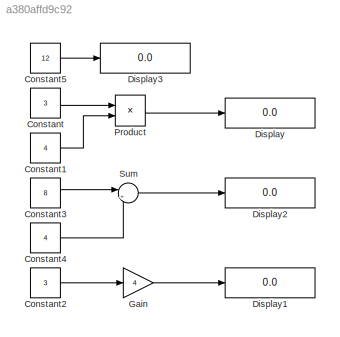
MODEL slx_a380affd9c92
KIND model
CONFIG AbsTol = auto
CONFIG EnableMultiTasking = off
CONFIG FixedStep = auto
CONFIG MaxStep = auto
CONFIG MinStep = auto
CONFIG RelTol = 1e-3
CONFIG SampleTimeConstraint = Unconstrained
CONFIG SolverName = VariableStepAuto
CONFIG StartTime = 0.0
CONFIG StopTime = 10.0
BLOCK [Constant] Constant
  Value = 3
BLOCK [Constant] Constant1
  Value = 4
BLOCK [Constant] Constant2
  Value = 3
BLOCK [Constant] Constant3
  Value = 8
BLOCK [Constant] Constant4
  Value = 4
BLOCK [Constant] Constant5
  Value = 12
BLOCK [Display] Display
  Decimation = 1
BLOCK [Display] Display1
  Decimation = 1
BLOCK [Display] Display2
  Decimation = 1
BLOCK [Display] Display3
  Decimation = 1
BLOCK [Gain] Gain
  Gain = 4
BLOCK [Product] Product
BLOCK [Sum] Sum
  Inputs = |++
LINE Constant1:1 -> Product:2
LINE Constant2:1 -> Gain:1
LINE Constant3:1 -> Sum:1
LINE Constant4:1 -> Sum:2
LINE Constant5:1 -> Display3:1
LINE Constant:1 -> Product:1
LINE Gain:1 -> Display1:1
LINE Product:1 -> Display:1
LINE Sum:1 -> Display2:1
